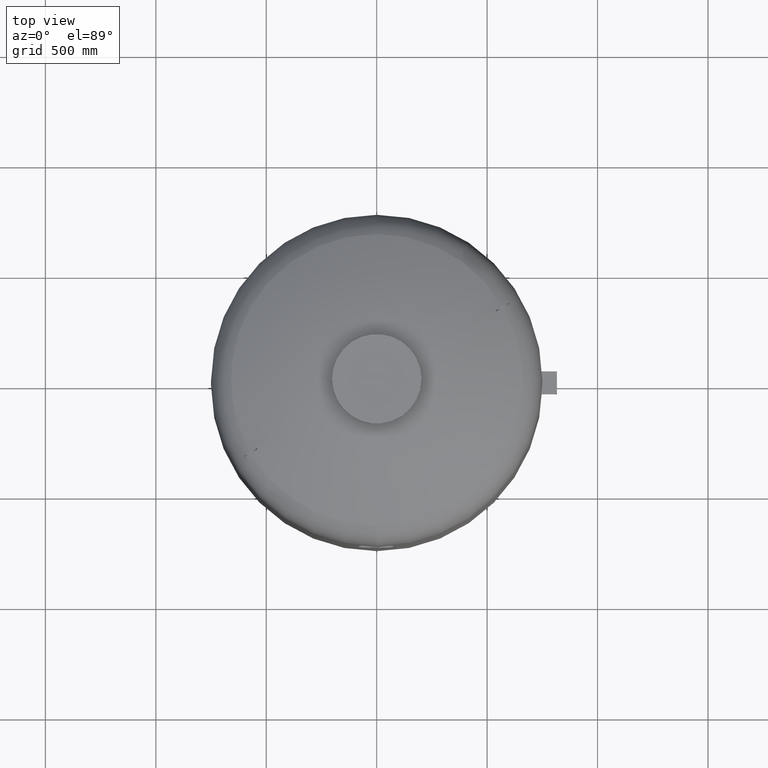
[diagram: clean part render]
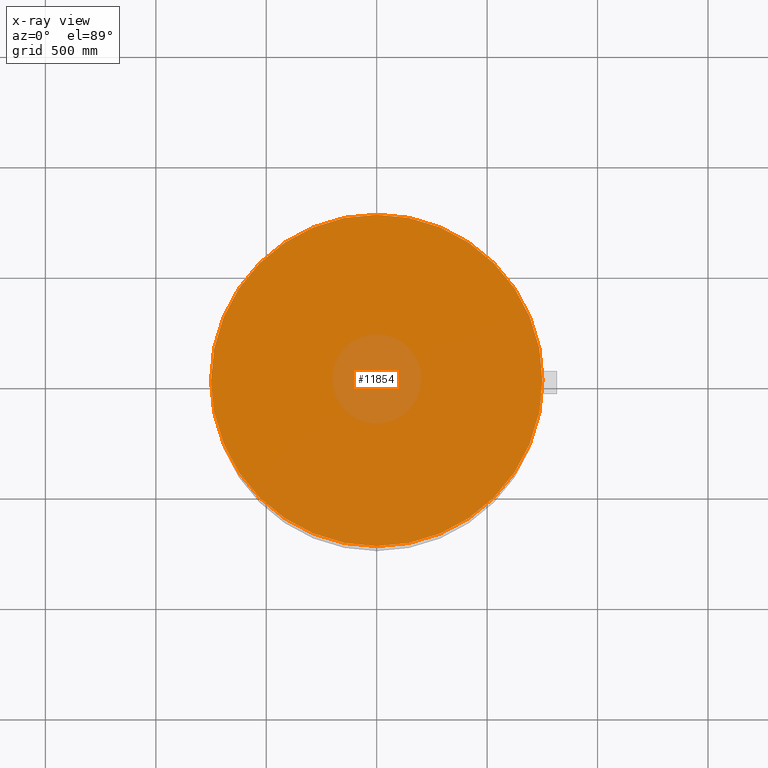
[diagram: x-ray — body ghosted, one internal face saturated and labeled with its STEP entity id]
A machine part, top view, then the same camera in x-ray: the body is ghosted and one INTERNAL B-rep face — a face not visible from any outside direction — is saturated and labeled: STEP entity #11854.
In plain terms, the highlighted planar face has unit normal (0, 0, 1).
Its self-contained STEP definition (entity closure, byte-faithful):
#11644=CARTESIAN_POINT('',(750.0,0.0,2070.0));
#11645=VERTEX_POINT('',#11644);
#11654=CARTESIAN_POINT('',(-750.000000000000110,-9.184548E-014,2070.0));
#11655=VERTEX_POINT('',#11654);
#11656=CARTESIAN_POINT('',(1.668796E-014,0.0,2070.0));
#11657=DIRECTION('',(0.0,0.0,1.0));
#11658=DIRECTION('',(1.0,0.0,0.0));
#11659=AXIS2_PLACEMENT_3D('',#11656,#11657,#11658);
#11660=CIRCLE('',#11659,750.0);
#11661=EDGE_CURVE('',#11655,#11645,#11660,.T.);
#11835=CARTESIAN_POINT('',(1.668796E-014,0.0,2070.0));
#11836=DIRECTION('',(0.0,0.0,1.0));
#11837=DIRECTION('',(1.0,0.0,0.0));
#11838=AXIS2_PLACEMENT_3D('',#11835,#11836,#11837);
#11839=CIRCLE('',#11838,750.0);
#11840=EDGE_CURVE('',#11645,#11655,#11839,.T.);
#11845=CARTESIAN_POINT('',(375.0,0.0,2070.0));
#11846=DIRECTION('',(0.0,0.0,1.0));
#11847=DIRECTION('',(1.0,0.0,0.0));
#11848=AXIS2_PLACEMENT_3D('',#11845,#11846,#11847);
#11849=PLANE('',#11848);
#11850=ORIENTED_EDGE('',*,*,#11840,.T.);
#11851=ORIENTED_EDGE('',*,*,#11661,.T.);
#11852=EDGE_LOOP('',(#11850,#11851));
#11853=FACE_OUTER_BOUND('',#11852,.T.);
#11854=ADVANCED_FACE('',(#11853),#11849,.T.);